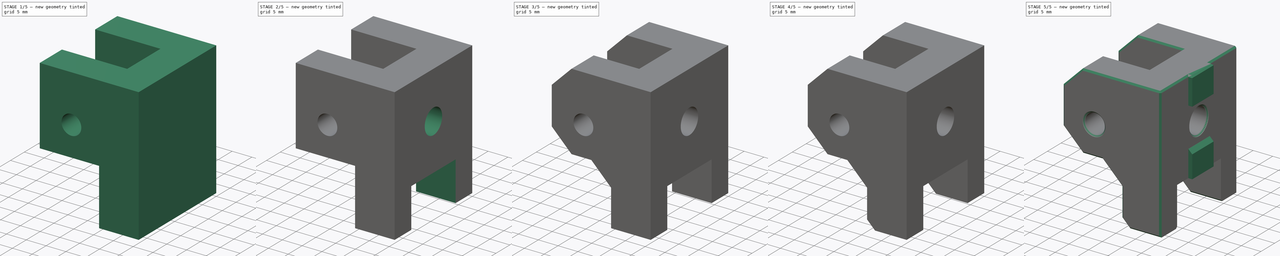
[diagram: build sequence overview — one tinted view per stage of 5, left to right]
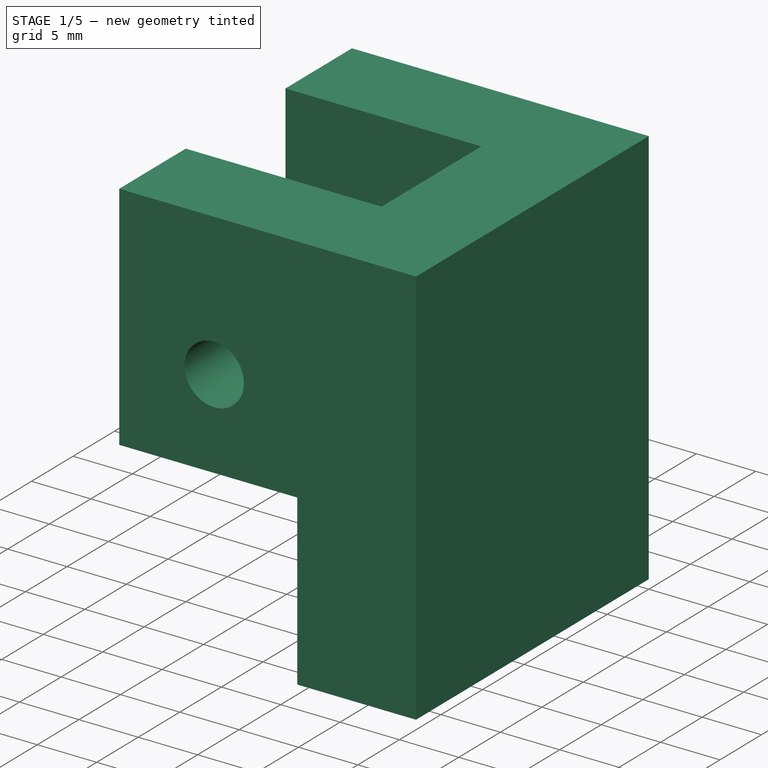
[diagram: stage 1 of 5 — iso view after this stage's code; geometry added in this stage tinted green]
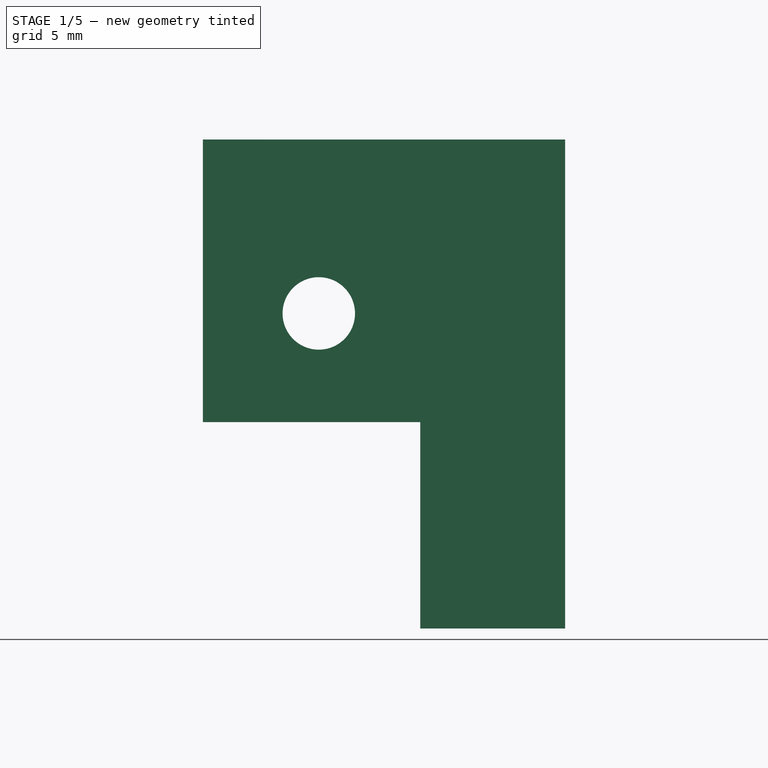
[diagram: stage 1 of 5 — front view after this stage's code; geometry added in this stage tinted green]
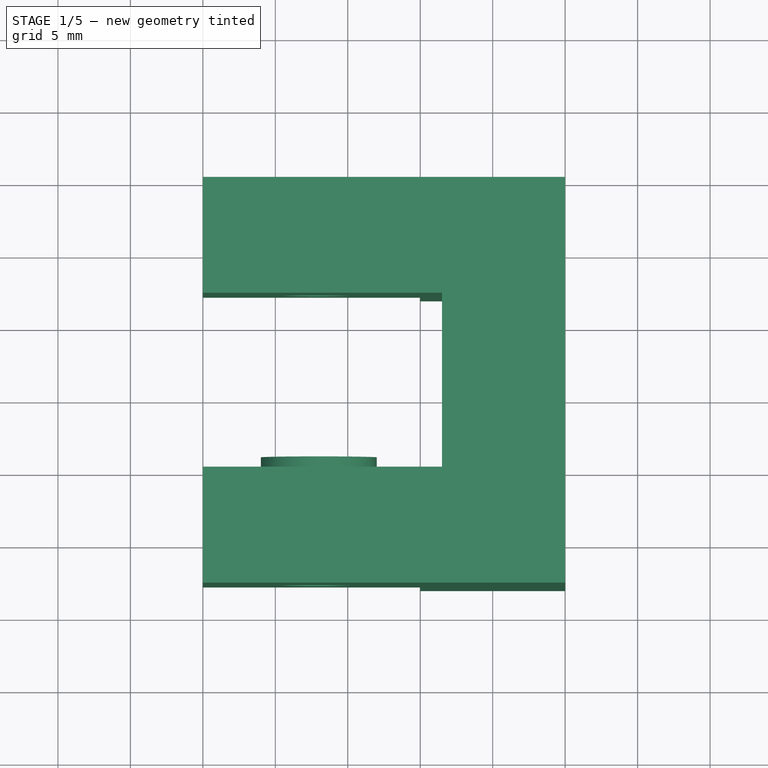
[diagram: stage 1 of 5 — top view after this stage's code; geometry added in this stage tinted green]
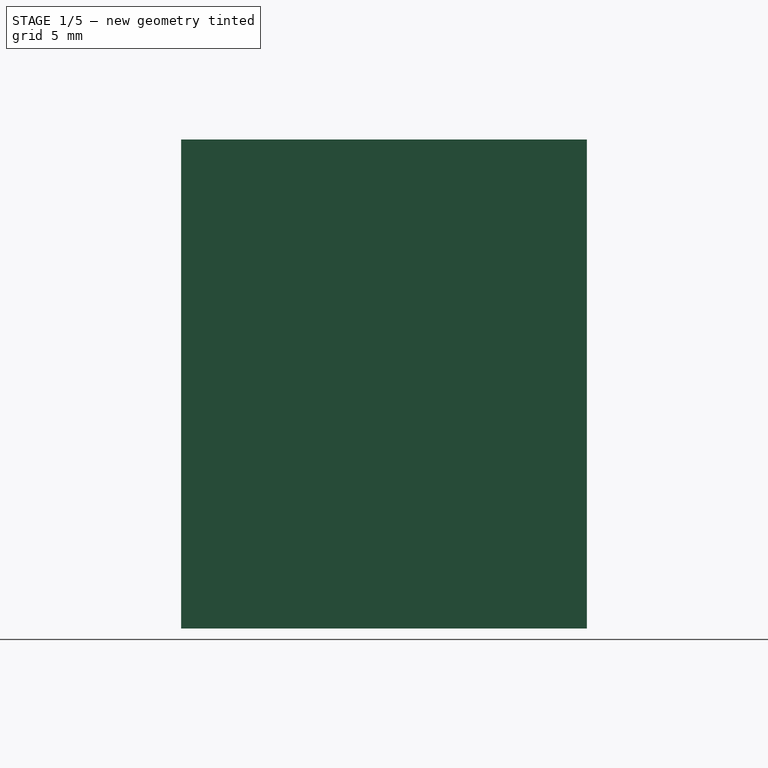
[diagram: stage 1 of 5 — right view after this stage's code; geometry added in this stage tinted green]
FCSTD DOCUMENT  (FreeCAD 0.19R24366 (Git))
Label: idex-idler-mount
License: All rights reserved
LicenseURL: http://en.wikipedia.org/wiki/All_rights_reserved
objects: Sketcher::SketchObject×9, PartDesign::Chamfer×6, PartDesign::Pocket×5, PartDesign::Pad×4, Part::Feature×2, PartDesign::Body×1
note: 42 computed .brp shape members not serialized (recipe doc carries the construction recipe); baked Part::Feature solids carry a one-line shape summary decoded from their .brp

FEATURE [Sketcher::SketchObject] Sketch
  FullyConstrained = true
  MapMode = 5
  Placement = pos=(0,0,0) rot=(1,0,0;1.5708rad)
  Support = -> [XZ_Plane]
  sketch-geometry (8):
    g0: Circle CenterX=-17 CenterY=21.74 CenterZ=0 NormalX=0 NormalY=0 NormalZ=1 AngleXU=0 Radius=7.5
    g1: LineSegment StartX=0 StartY=0 StartZ=0 EndX=0 EndY=33.74 EndZ=0
    g2: LineSegment StartX=0 StartY=33.74 StartZ=0 EndX=-25 EndY=33.74 EndZ=0
    g3: LineSegment StartX=-25 StartY=33.74 StartZ=0 EndX=-25 EndY=14.24 EndZ=0
    g4: LineSegment StartX=-25 StartY=14.24 StartZ=0 EndX=-10 EndY=14.24 EndZ=0
    g5: LineSegment StartX=-10 StartY=14.24 StartZ=0 EndX=-10 EndY=0 EndZ=0
    g6: LineSegment StartX=-10 StartY=0 StartZ=0 EndX=0 EndY=0 EndZ=0
    g7: Circle CenterX=-17 CenterY=21.74 CenterZ=0 NormalX=0 NormalY=0 NormalZ=1 AngleXU=0 Radius=2.5
  constraints (22):
    c: Radius(g0) = 7.5
    c: DistanceY(g-1,g0) = 21.74
    c: DistanceX(g0,g-1) = 17
    c: Coincident(g-1,g1)
    c: Vertical(g1)
    c: Coincident(g1,g2)
    c: Horizontal(g2)
    c: Coincident(g2,g3)
    c: Vertical(g3)
    c: Coincident(g3,g4)
    c: Horizontal(g4)
    c: Coincident(g4,g5)
    c: PointOnObject(g5,g-1)
    c: Vertical(g5)
    c: Coincident(g5,g6)
    c: Coincident(g6,g1)
    c: DistanceY(g0,g2) = 12
    c: DistanceY(g3,g0) = 7.5
    c: DistanceX(g5,g1) = 10
    c: DistanceX(g3,g0) = 8
    c: Coincident(g7,g0)
    c: Radius(g7) = 2.5
FEATURE [PartDesign::Pad] Pad
  Direction = (1,1,1)
  Length = 28
  Length2 = 100
  Placement = pos=(0,0,0) rot=(1,0,0;1.5708rad)
  Profile = -> Sketch
  Type = 0
FEATURE [Sketcher::SketchObject] Sketch001
  FullyConstrained = true
  MapMode = 5
  Placement = pos=(0,-7.5e-15,33.74) rot=(0,0,1;3.14159rad)
  Support = -> [Pad]
  sketch-geometry (4):
    g0: LineSegment StartX=29 StartY=8 StartZ=0 EndX=8.5 EndY=8 EndZ=0
    g1: LineSegment StartX=8.5 StartY=8 StartZ=0 EndX=8.5 EndY=20 EndZ=0
    g2: LineSegment StartX=8.5 StartY=20 StartZ=0 EndX=29 EndY=20 EndZ=0
    g3: LineSegment StartX=29 StartY=20 StartZ=0 EndX=29 EndY=8 EndZ=0
  constraints (12):
    c: Coincident(g0,g1)
    c: Coincident(g1,g2)
    c: Coincident(g2,g3)
    c: Coincident(g3,g0)
    c: Horizontal(g0)
    c: Horizontal(g2)
    c: Vertical(g1)
    c: Vertical(g3)
    c: DistanceY(g3,g3) = 12
    c: DistanceY(g-1,g0) = 8
    c: DistanceX(g0,g0) = 20.5
    c: DistanceX(g-1,g0) = 8.5
FEATURE [PartDesign::Pocket] Pocket
  BaseFeature = -> Pad
  Length = 5
  Length2 = 100
  Placement = pos=(0,0,0) rot=(1,0,0;1.5708rad)
  Profile = -> Sketch001
  Type = 1
FEATURE [Sketcher::SketchObject] Sketch002
  ExternalGeometry = -> [Pocket]
  FullyConstrained = true
  MapMode = 5
  Placement = pos=(0,-20,-4.4e-15) rot=(-1,0,0;1.5708rad)
  Support = -> [Pocket]
  sketch-geometry (2):
    g0: Circle CenterX=-17 CenterY=-21.74 CenterZ=0 NormalX=0 NormalY=0 NormalZ=1 AngleXU=0 Radius=2.5
    g1: Circle CenterX=-17 CenterY=-21.74 CenterZ=0 NormalX=0 NormalY=0 NormalZ=1 AngleXU=0 Radius=4
  constraints (4):
    c: Coincident(g0,g-3)
    c: Coincident(g1,g0)
    c: Radius(g0) = 2.5
    c: Radius(g1) = 4
FEATURE [PartDesign::Pad] Pad001
  BaseFeature = -> Pocket
  Direction = (1,1,1)
  Length = 0.85
  Length2 = 100
  Placement = pos=(0,0,0) rot=(1,0,0;1.5708rad)
  Profile = -> Sketch002
  Type = 0
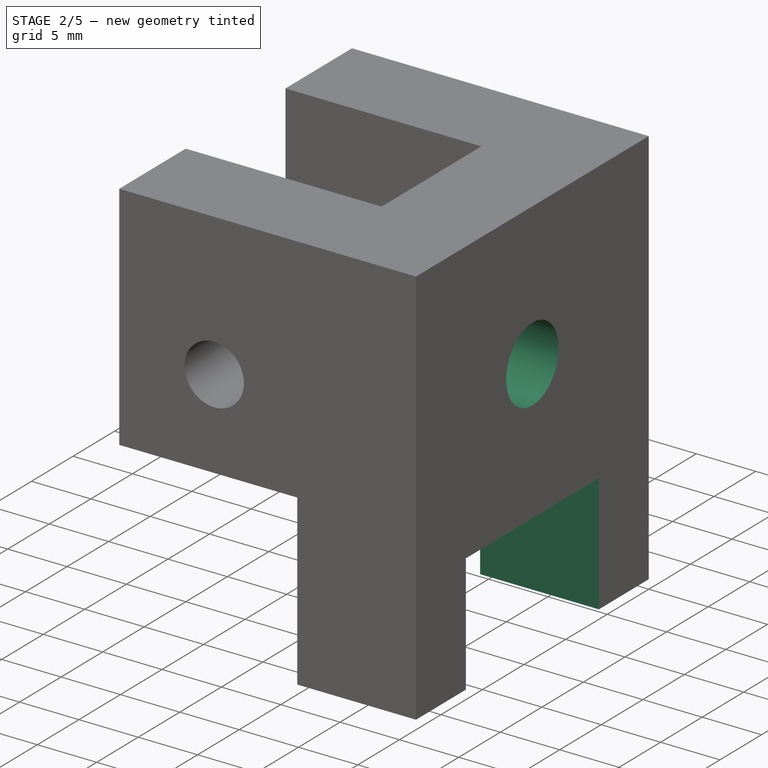
[diagram: stage 2 of 5 — iso view after this stage's code; geometry added in this stage tinted green]
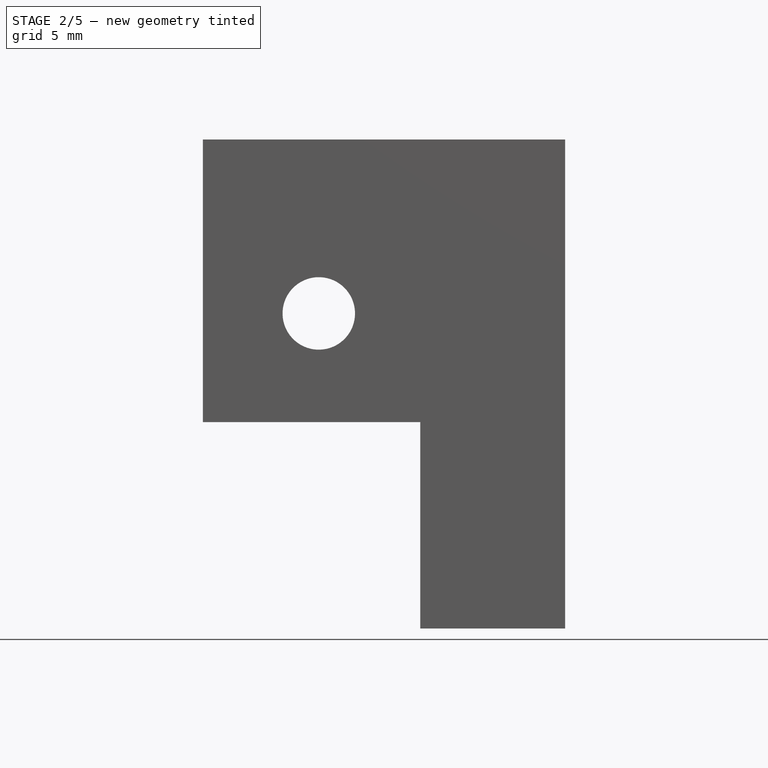
[diagram: stage 2 of 5 — front view after this stage's code; geometry added in this stage tinted green]
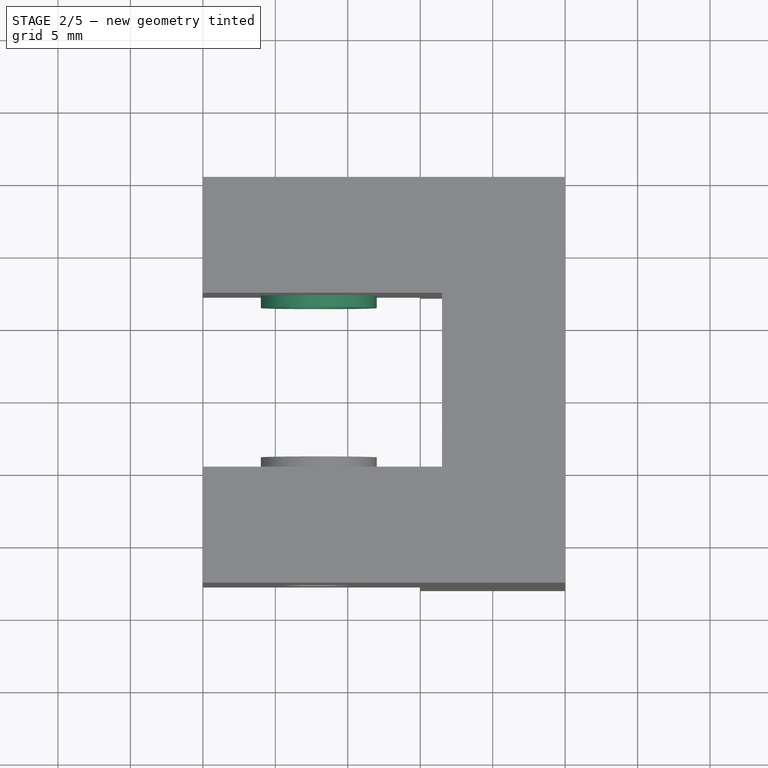
[diagram: stage 2 of 5 — top view after this stage's code; geometry added in this stage tinted green]
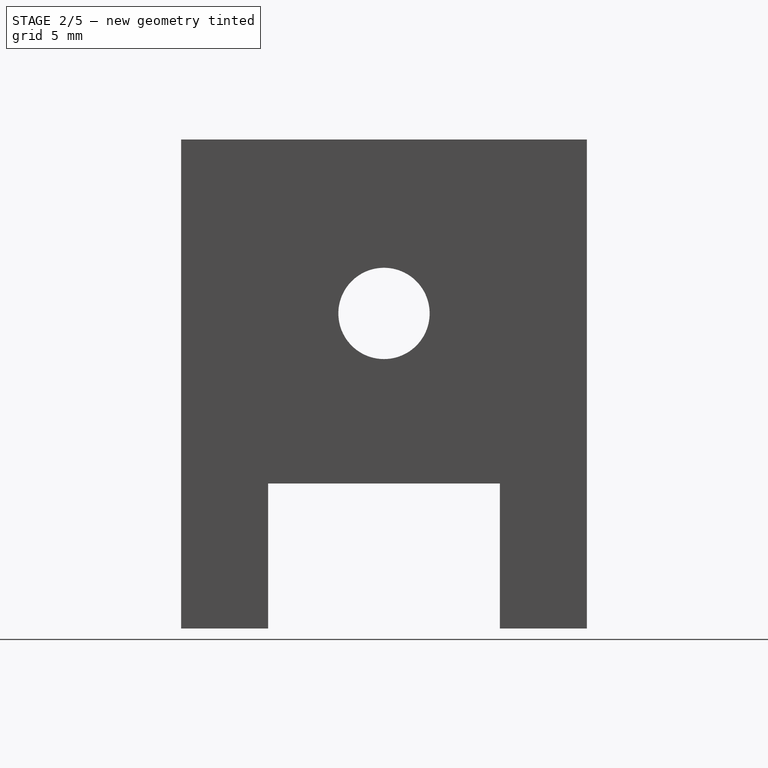
[diagram: stage 2 of 5 — right view after this stage's code; geometry added in this stage tinted green]
FEATURE [Sketcher::SketchObject] Sketch003
  ExternalGeometry = -> [Pad001]
  FullyConstrained = true
  MapMode = 5
  Placement = pos=(0,-8,-1.8e-15) rot=(1,0,0;1.5708rad)
  Support = -> [Pad001]
  sketch-geometry (2):
    g0: Circle CenterX=-17 CenterY=21.74 CenterZ=0 NormalX=0 NormalY=0 NormalZ=1 AngleXU=0 Radius=4
    g1: Circle CenterX=-17 CenterY=21.74 CenterZ=0 NormalX=0 NormalY=0 NormalZ=1 AngleXU=0 Radius=2.5
  constraints (4):
    c: Coincident(g0,g-3)
    c: Coincident(g1,g0)
    c: Radius(g1) = 2.5
    c: Radius(g0) = 4
FEATURE [PartDesign::Pad] Pad002
  BaseFeature = -> Pad001
  Direction = (1,1,1)
  Length = 0.85
  Length2 = 100
  Placement = pos=(0,0,0) rot=(1,0,0;1.5708rad)
  Profile = -> Sketch003
  Type = 0
FEATURE [Part::Feature] Cut002001  label="20t-pulley001"
  Placement = pos=(-17.05,-8.85,21.7) rot=(0,0.707107,-0.707107;3.14159rad)
  shape: bbox 15 x 16 x 15 mm, 8 faces (baked)
FEATURE [Sketcher::SketchObject] Sketch004
  FullyConstrained = false
  MapMode = 5
  Placement = pos=(-8.5,0,0) rot=(0.707107,0,-0.707107;3.14159rad)
  Support = -> [Pad002]
  sketch-geometry (2):
    g0: Circle CenterX=-21.74 CenterY=14 CenterZ=0 NormalX=0 NormalY=0 NormalZ=1 AngleXU=0 Radius=3.15
    g1: Circle CenterX=-21.74 CenterY=14 CenterZ=0 NormalX=0 NormalY=0 NormalZ=1 AngleXU=0 Radius=6
  constraints (3):
    c: Coincident(g1,g0)
    c: Radius(g1) = 6
    c: DistanceX(g0,g-1) = 21.74
FEATURE [PartDesign::Pocket] Pocket001
  BaseFeature = -> Pad002
  Length = 5
  Length2 = 100
  Placement = pos=(0,0,0) rot=(1,0,0;1.5708rad)
  Profile = -> Sketch004
  Type = 1
FEATURE [Part::Feature] Chamfer002001  label="backup"
  Placement = pos=(0,0,0) rot=(1,0,0;1.5708rad)
  shape: bbox 25 x 28 x 33.74 mm, 36 faces (baked)
FEATURE [Sketcher::SketchObject] Sketch005
  FullyConstrained = true
  MapMode = 5
  Placement = pos=(0,0,0) rot=(1,0,0;3.14159rad)
  Support = -> [Pocket001]
  sketch-geometry (4):
    g0: LineSegment StartX=0 StartY=22 StartZ=0 EndX=-10 EndY=22 EndZ=0
    g1: LineSegment StartX=-10 StartY=22 StartZ=0 EndX=-10 EndY=6 EndZ=0
    g2: LineSegment StartX=-10 StartY=6 StartZ=0 EndX=0 EndY=6 EndZ=0
    g3: LineSegment StartX=0 StartY=6 StartZ=0 EndX=0 EndY=22 EndZ=0
  constraints (12):
    c: Coincident(g0,g1)
    c: Coincident(g1,g2)
    c: Coincident(g2,g3)
    c: Coincident(g3,g0)
    c: Horizontal(g0)
    c: Horizontal(g2)
    c: Vertical(g1)
    c: Vertical(g3)
    c: PointOnObject(g0,g-2)
    c: DistanceY(g1,g1) = 16
    c: DistanceY(g-1,g2) = 6
    c: DistanceX(g1,g2) = 10
FEATURE [PartDesign::Pocket] Pocket002
  BaseFeature = -> Pocket001
  Length = 10
  Length2 = 100
  Placement = pos=(0,0,0) rot=(1,0,0;1.5708rad)
  Profile = -> Sketch005
  Type = 0
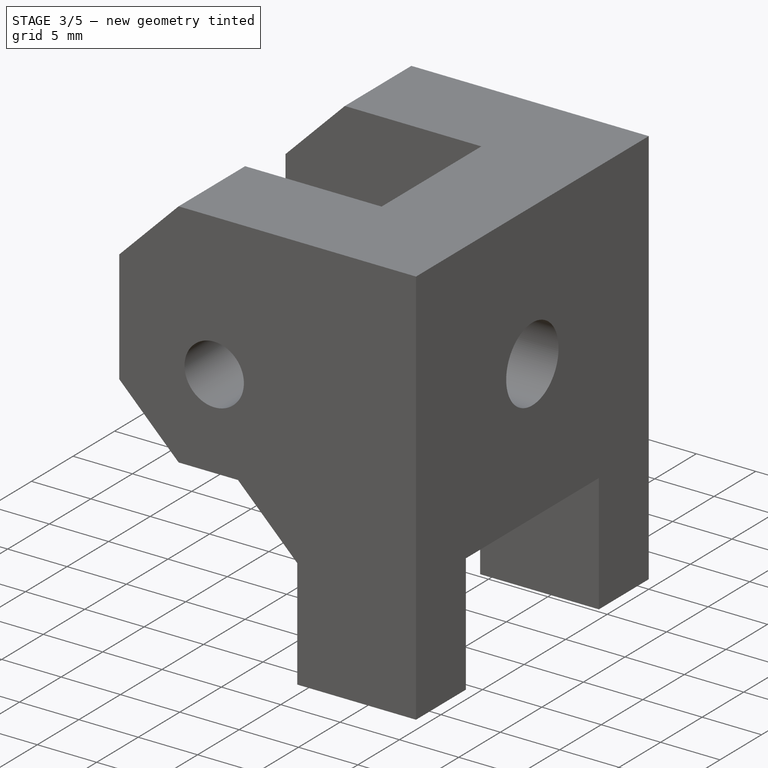
[diagram: stage 3 of 5 — iso view after this stage's code; geometry added in this stage tinted green]
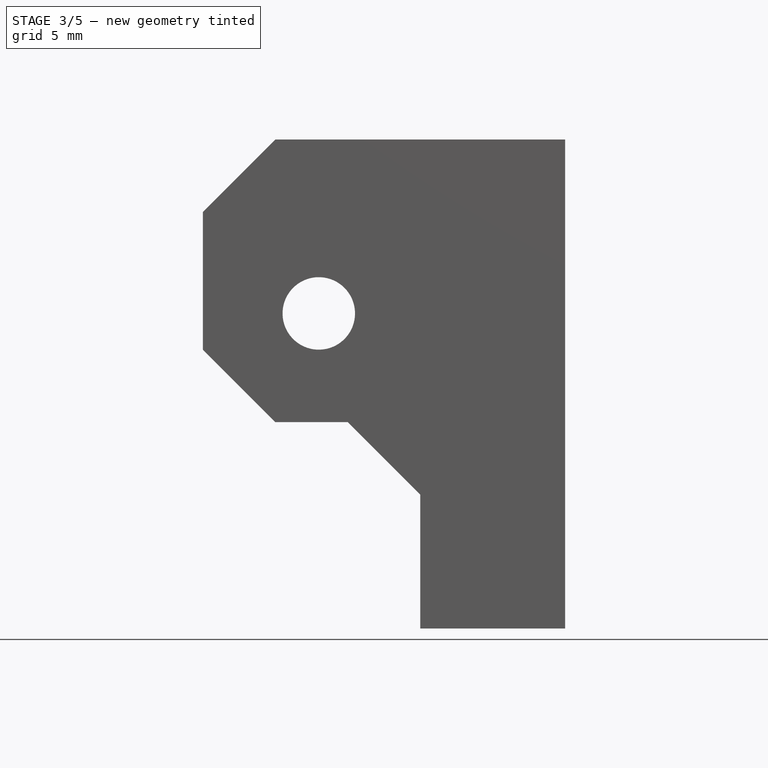
[diagram: stage 3 of 5 — front view after this stage's code; geometry added in this stage tinted green]
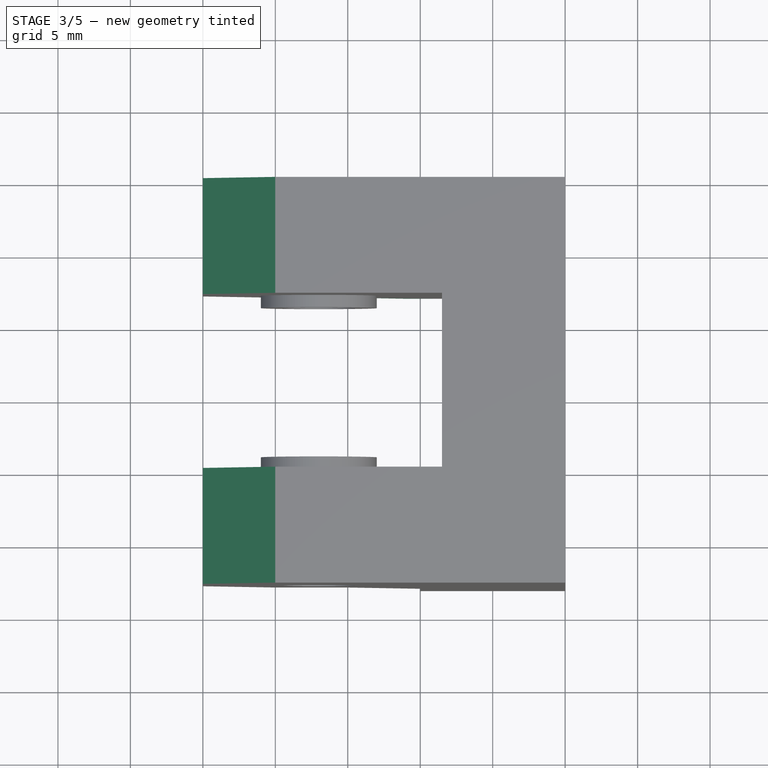
[diagram: stage 3 of 5 — top view after this stage's code; geometry added in this stage tinted green]
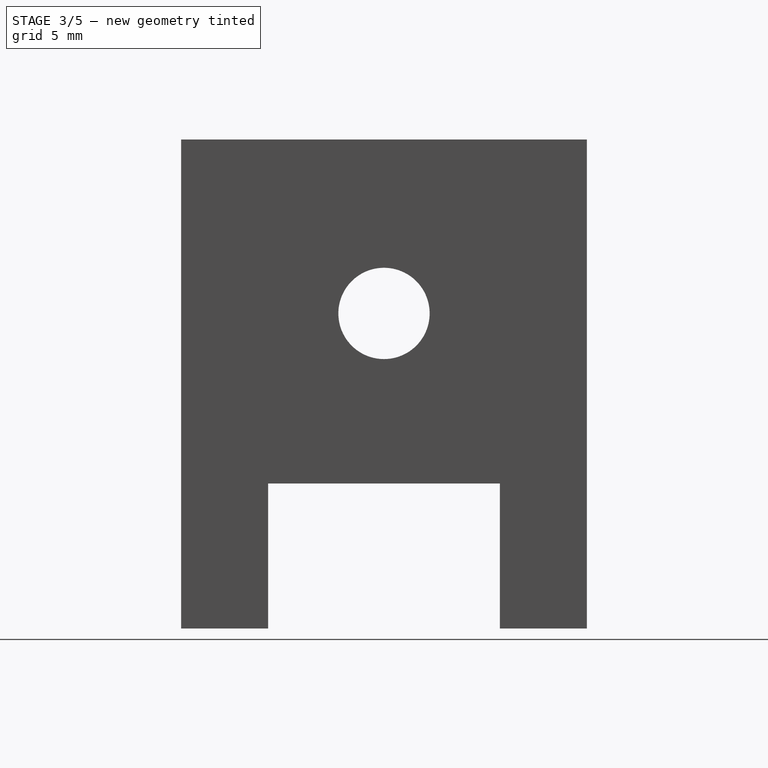
[diagram: stage 3 of 5 — right view after this stage's code; geometry added in this stage tinted green]
FEATURE [Sketcher::SketchObject] Sketch006
  ExternalGeometry = -> [Pocket002]
  FullyConstrained = true
  MapMode = 5
  Placement = pos=(-8.5,0,0) rot=(0.707107,0,-0.707107;3.14159rad)
  Support = -> [Pocket002]
  sketch-geometry (1):
    g0: Circle CenterX=-21.74 CenterY=14 CenterZ=0 NormalX=0 NormalY=0 NormalZ=1 AngleXU=0 Radius=5.75
  constraints (2):
    c: Coincident(g0,g-3)
    c: Radius(g0) = 5.75
FEATURE [PartDesign::Pocket] Pocket002002
  BaseFeature = -> Pocket002
  Length = 3.5
  Length2 = 100
  Placement = pos=(0,0,0) rot=(1,0,0;1.5708rad)
  Profile = -> Sketch006
  Type = 0
FEATURE [PartDesign::Chamfer] Chamfer
  Angle = 45
  Base = -> Pocket002002 [Edge42,Edge57,Edge16,Edge20]
  BaseFeature = -> Pocket002002
  ChamferType = 0
  FlipDirection = false
  Placement = pos=(0,0,0) rot=(1,0,0;1.5708rad)
  Size = 5
  Size2 = 1
  SupportTransform = false
FEATURE [PartDesign::Chamfer] Chamfer002002
  Angle = 45
  Base = -> Chamfer [Edge35,Edge74]
  BaseFeature = -> Chamfer
  ChamferType = 0
  FlipDirection = false
  Placement = pos=(0,0,0) rot=(1,0,0;1.5708rad)
  Size = 5
  Size2 = 1
  SupportTransform = false
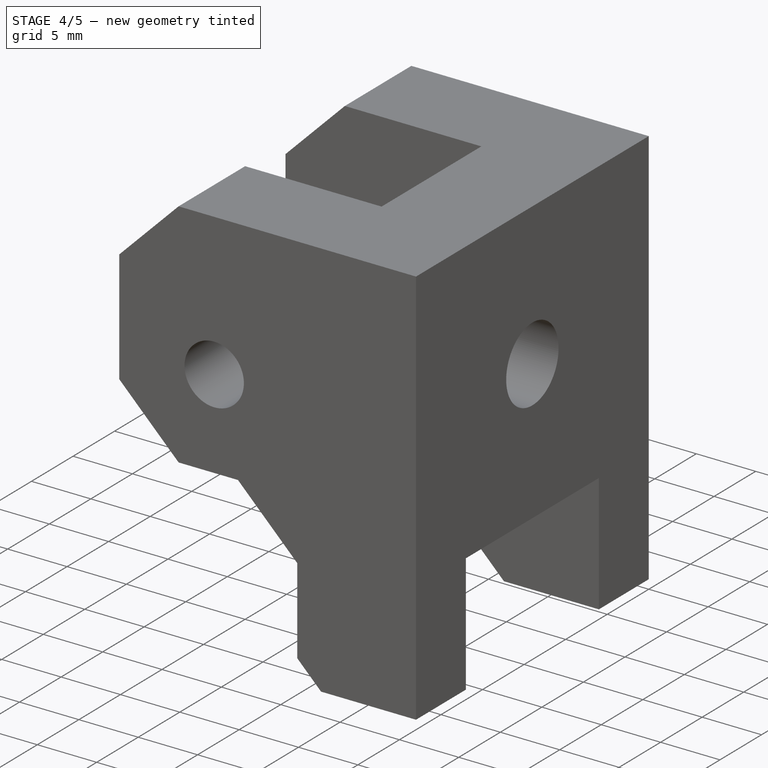
[diagram: stage 4 of 5 — iso view after this stage's code; geometry added in this stage tinted green]
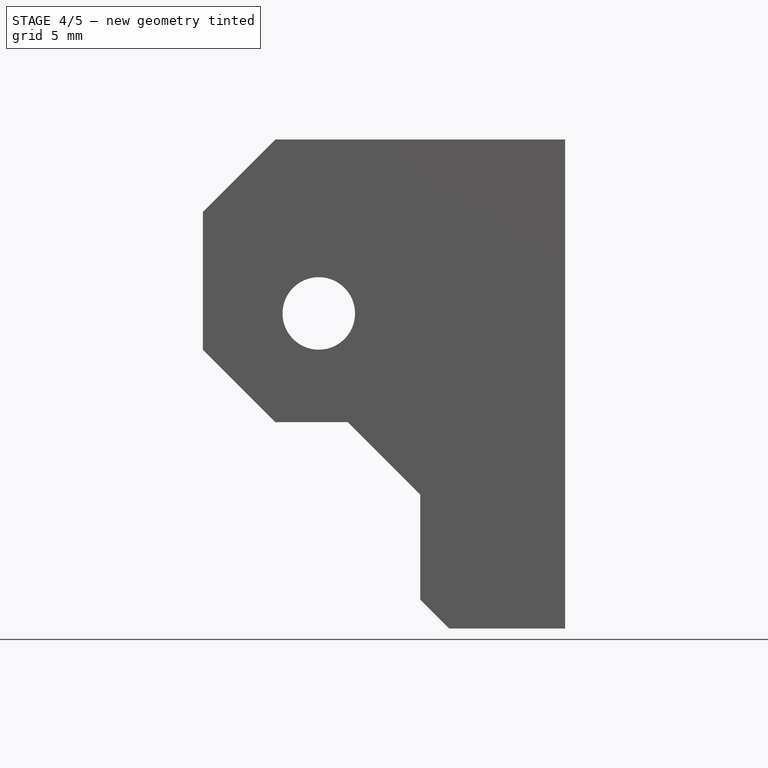
[diagram: stage 4 of 5 — front view after this stage's code; geometry added in this stage tinted green]
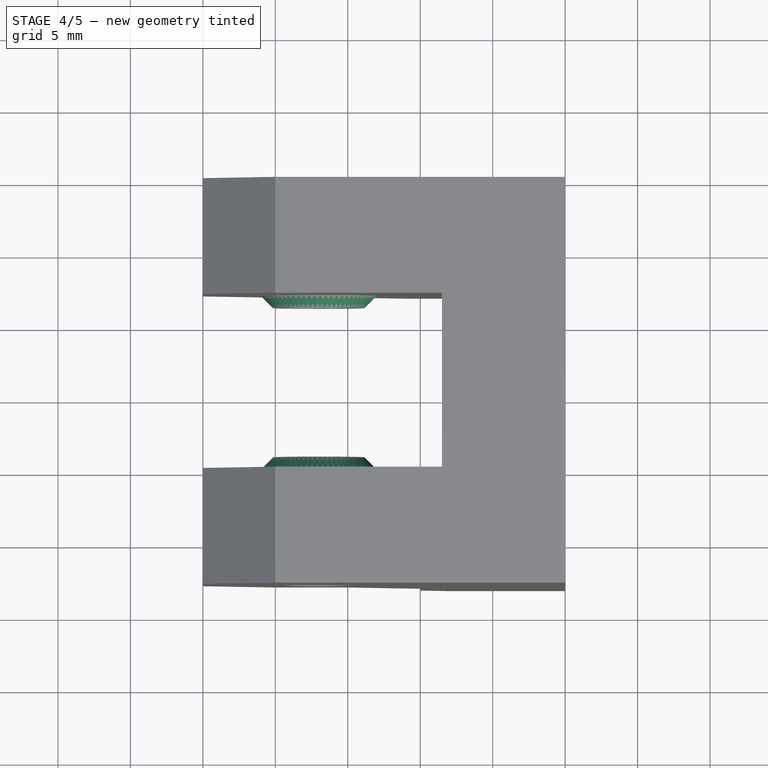
[diagram: stage 4 of 5 — top view after this stage's code; geometry added in this stage tinted green]
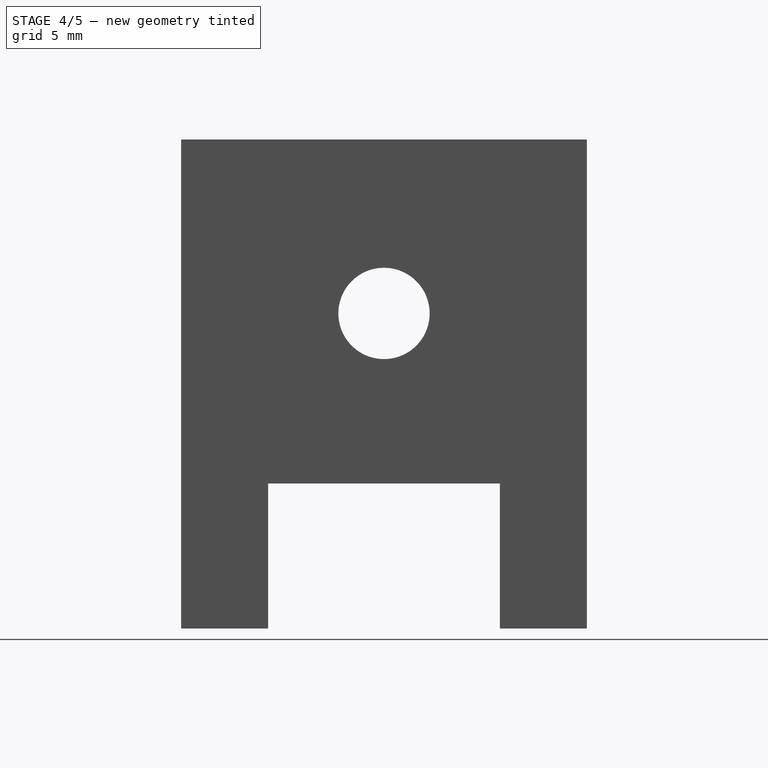
[diagram: stage 4 of 5 — right view after this stage's code; geometry added in this stage tinted green]
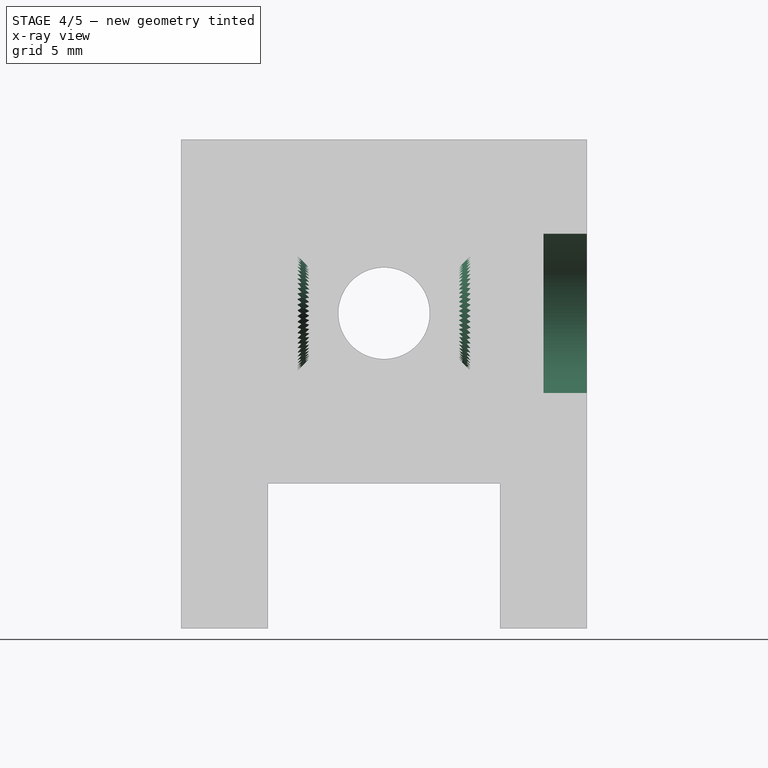
[diagram: stage 4 of 5 — x-ray composite at the right view; earlier geometry ghosted, this stage's added geometry solid]
FEATURE [PartDesign::Chamfer] Chamfer002003
  Angle = 45
  Base = -> Chamfer002002 [Edge12,Edge58]
  BaseFeature = -> Chamfer002002
  ChamferType = 0
  FlipDirection = false
  Placement = pos=(0,0,0) rot=(1,0,0;1.5708rad)
  Size = 2
  Size2 = 1
  SupportTransform = false
FEATURE [PartDesign::Chamfer] Chamfer002004
  Angle = 45
  Base = -> Chamfer002003 [Edge83,Edge92]
  BaseFeature = -> Chamfer002003
  ChamferType = 0
  FlipDirection = false
  Placement = pos=(0,0,0) rot=(1,0,0;1.5708rad)
  Size = 0.84
  Size2 = 1
  SupportTransform = false
FEATURE [Sketcher::SketchObject] Sketch007
  ExternalGeometry = -> [Chamfer002004]
  FullyConstrained = true
  MapMode = 5
  Placement = pos=(0,0,0) rot=(-1,0,0;1.5708rad)
  Support = -> [Chamfer002004]
  sketch-geometry (1):
    g0: Circle CenterX=-17 CenterY=-21.74 CenterZ=0 NormalX=0 NormalY=0 NormalZ=1 AngleXU=0 Radius=5.5
  constraints (2):
    c: Coincident(g0,g-3)
    c: Radius(g0) = 5.5
FEATURE [PartDesign::Pocket] Pocket002003
  BaseFeature = -> Chamfer002004
  Length = 3
  Length2 = 100
  Placement = pos=(0,0,0) rot=(1,0,0;1.5708rad)
  Profile = -> Sketch007
  Type = 0
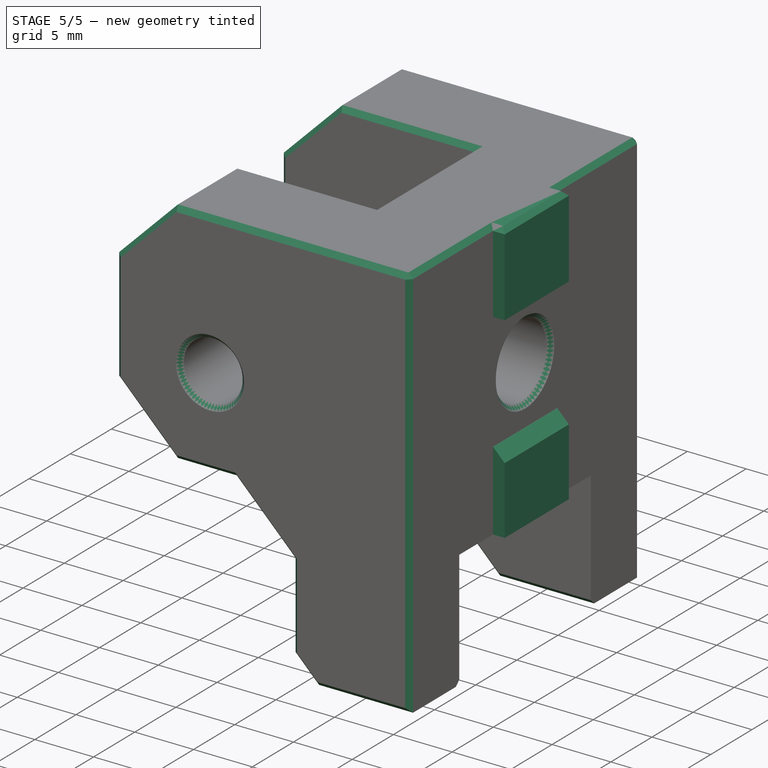
[diagram: stage 5 of 5 — iso view after this stage's code; geometry added in this stage tinted green]
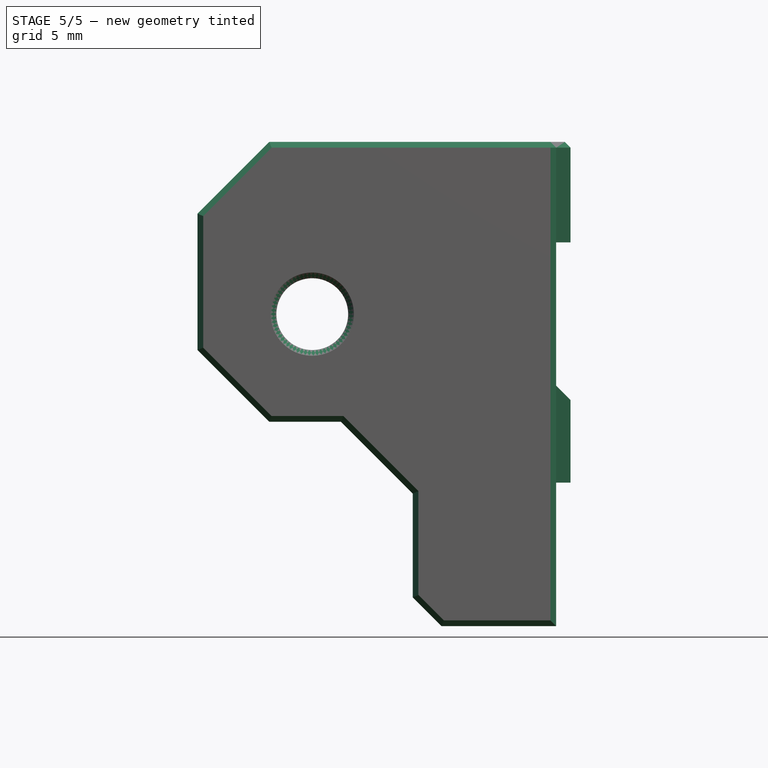
[diagram: stage 5 of 5 — front view after this stage's code; geometry added in this stage tinted green]
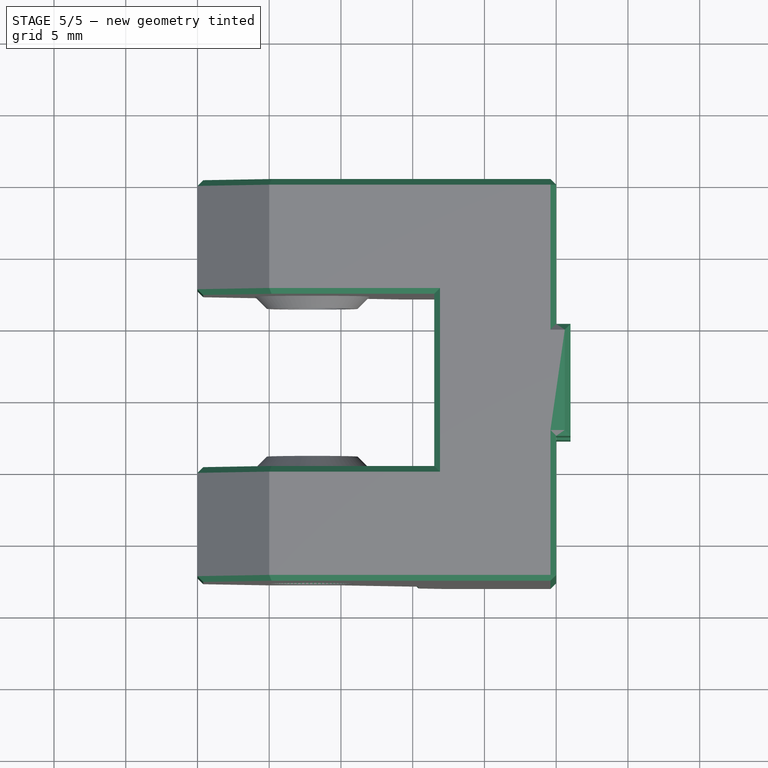
[diagram: stage 5 of 5 — top view after this stage's code; geometry added in this stage tinted green]
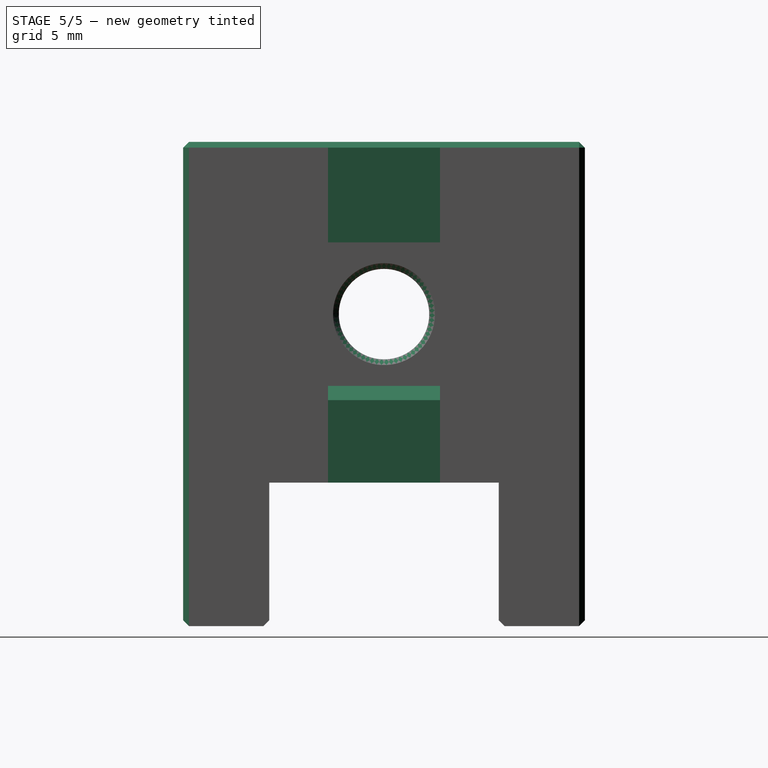
[diagram: stage 5 of 5 — right view after this stage's code; geometry added in this stage tinted green]
FEATURE [Sketcher::SketchObject] Sketch008
  ExternalGeometry = -> [Pocket002003]
  FullyConstrained = true
  MapMode = 5
  Placement = pos=(0,0,0) rot=(0.707107,0,0.707107;3.14159rad)
  Support = -> [Pocket002003]
  sketch-geometry (8):
    g0: LineSegment StartX=10 StartY=17.9 StartZ=0 EndX=16.74 EndY=17.9 EndZ=0
    g1: LineSegment StartX=16.74 StartY=17.9 StartZ=0 EndX=16.74 EndY=10.1 EndZ=0
    g2: LineSegment StartX=16.74 StartY=10.1 StartZ=0 EndX=10 EndY=10.1 EndZ=0
    g3: LineSegment StartX=10 StartY=10.1 StartZ=0 EndX=10 EndY=17.9 EndZ=0
    g4: LineSegment StartX=33.74 StartY=17.9 StartZ=0 EndX=26.74 EndY=17.9 EndZ=0
    g5: LineSegment StartX=26.74 StartY=17.9 StartZ=0 EndX=26.74 EndY=10.1 EndZ=0
    g6: LineSegment StartX=26.74 StartY=10.1 StartZ=0 EndX=33.74 EndY=10.1 EndZ=0
    g7: LineSegment StartX=33.74 StartY=10.1 StartZ=0 EndX=33.74 EndY=17.9 EndZ=0
  constraints (24):
    c: Coincident(g0,g1)
    c: Coincident(g1,g2)
    c: Coincident(g2,g3)
    c: Coincident(g3,g0)
    c: Horizontal(g0)
    c: Horizontal(g2)
    c: Vertical(g1)
    c: Vertical(g3)
    c: PointOnObject(g0,g-3)
    c: Coincident(g4,g5)
    c: Coincident(g5,g6)
    c: Coincident(g6,g7)
    c: Coincident(g7,g4)
    c: Horizontal(g4)
    c: Horizontal(g6)
    c: Vertical(g5)
    c: Vertical(g7)
    c: PointOnObject(g4,g-4)
    c: Horizontal(g0,g4)
    c: Horizontal(g1,g5)
    c: DistanceY(g-4,g6) = 10.1
    c: DistanceY(g5,g5) = 7.8
    c: DistanceX(g0,g-5) = 5
    c: DistanceX(g-5,g4) = 5
FEATURE [PartDesign::Pad] Pad003
  BaseFeature = -> Pocket002003
  Direction = (1,1,1)
  Length = 1
  Length2 = 100
  Placement = pos=(0,0,0) rot=(1,0,0;1.5708rad)
  Profile = -> Sketch008
  Type = 0
FEATURE [PartDesign::Chamfer] Chamfer002005
  Angle = 45
  Base = -> Pad003 [Edge111]
  BaseFeature = -> Pad003
  ChamferType = 0
  FlipDirection = false
  Placement = pos=(0,0,0) rot=(1,0,0;1.5708rad)
  Refine = true
  Size = 0.99
  Size2 = 1
  SupportTransform = false
FEATURE [PartDesign::Chamfer] Chamfer002006
  Angle = 45
  Base = -> Chamfer002005 [Face11,Face7,Edge16,Edge44,Edge103,Edge40,Edge12,Edge89,Edge99,Edge87,Edge82,Edge93,Edge101,Edge80,Edge52,Edge54,Edge53,Edge35,Edge37,Edge36,Edge100,Edge98,Edge97,Edge96,Edge91,Edge85,Edge73,Edge76,Edge78,Edge57,Edge59,Edge58,Edge60,Edge106,Edge65,Edge63,Edge62,Edge64,Edge72,Edge25,+3 more]
  BaseFeature = -> Chamfer002005
  ChamferType = 0
  FlipDirection = false
  Placement = pos=(0,0,0) rot=(1,0,0;1.5708rad)
  Size = 0.4
  Size2 = 1
  SupportTransform = false
FEATURE [PartDesign::Body] Body
  Group = -> [Sketch,Pad,Sketch001,Pocket,Sketch002,Pad001,Sketch003,Pad002,Sketch004,Pocket001,Sketch005,Pocket002,Sketch006,Pocket002002,Chamfer,Chamfer002002,Chamfer002003,Chamfer002004,Sketch007,Pocket002003,Sketch008,Pad003,Chamfer002005,Chamfer002006]
  Origin = -> Origin
  Tip = -> Chamfer002006
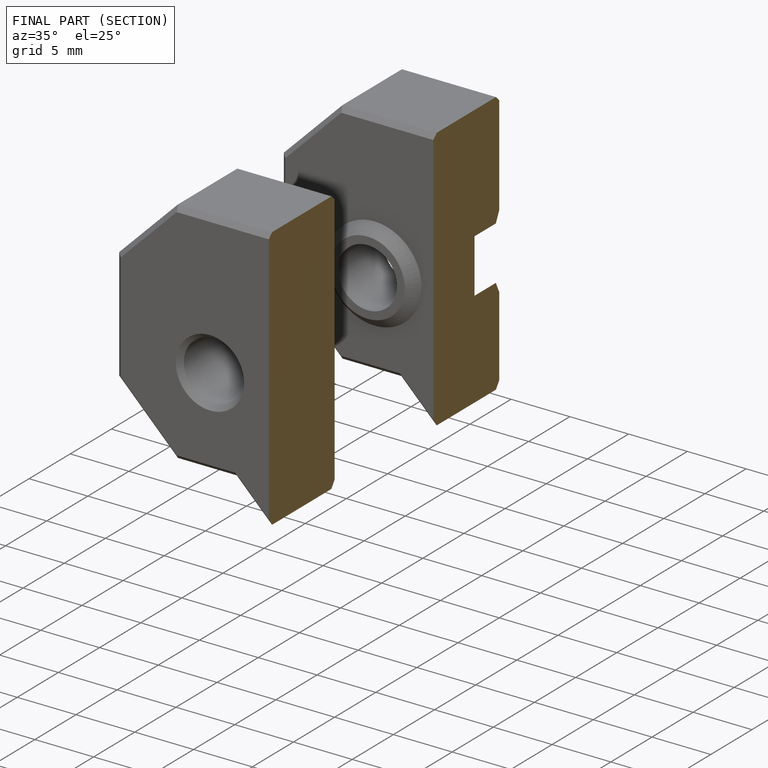
[diagram: finished part — half-section view (interior)]
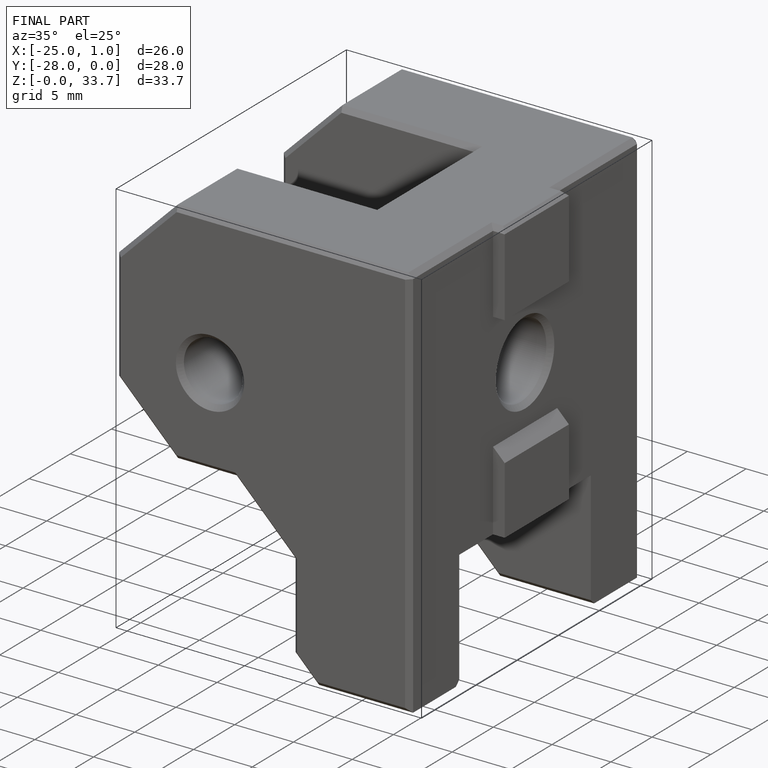
[diagram: finished part — iso view with bounding-box wireframe]
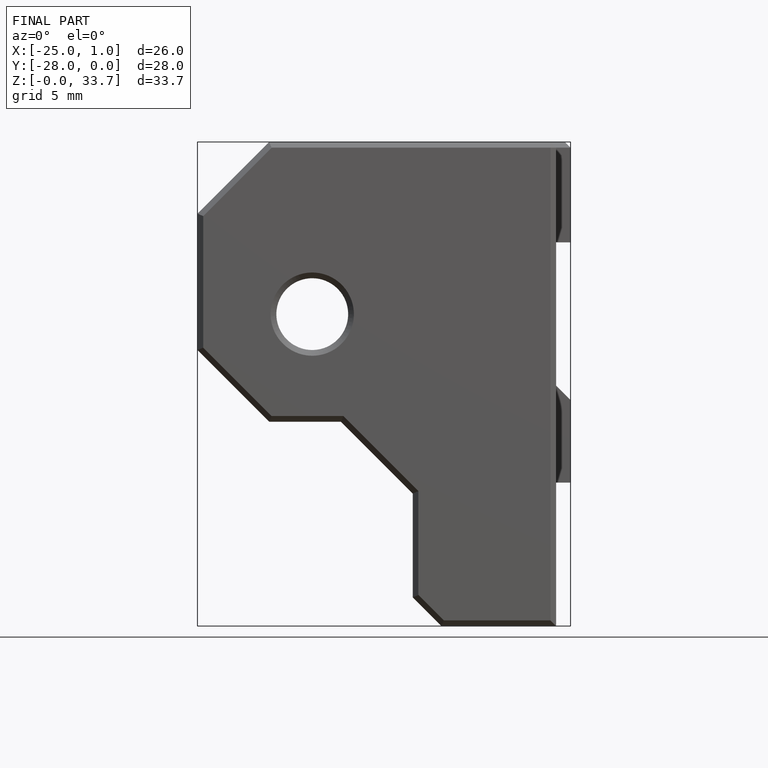
[diagram: finished part — front view with bounding-box wireframe]
